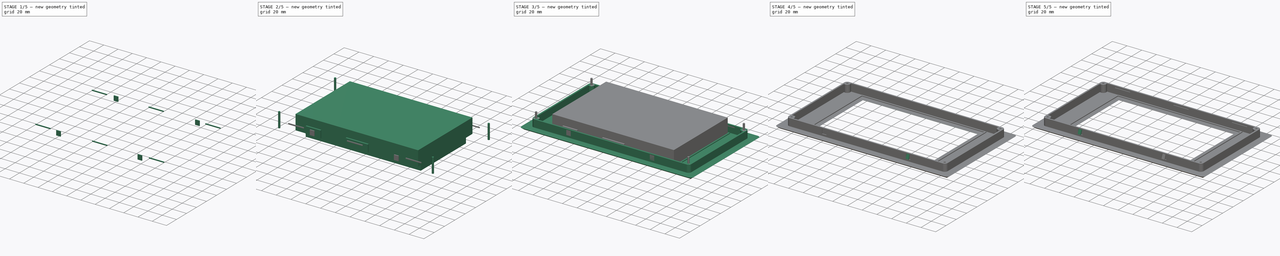
[diagram: build sequence overview — one tinted view per stage of 5, left to right]
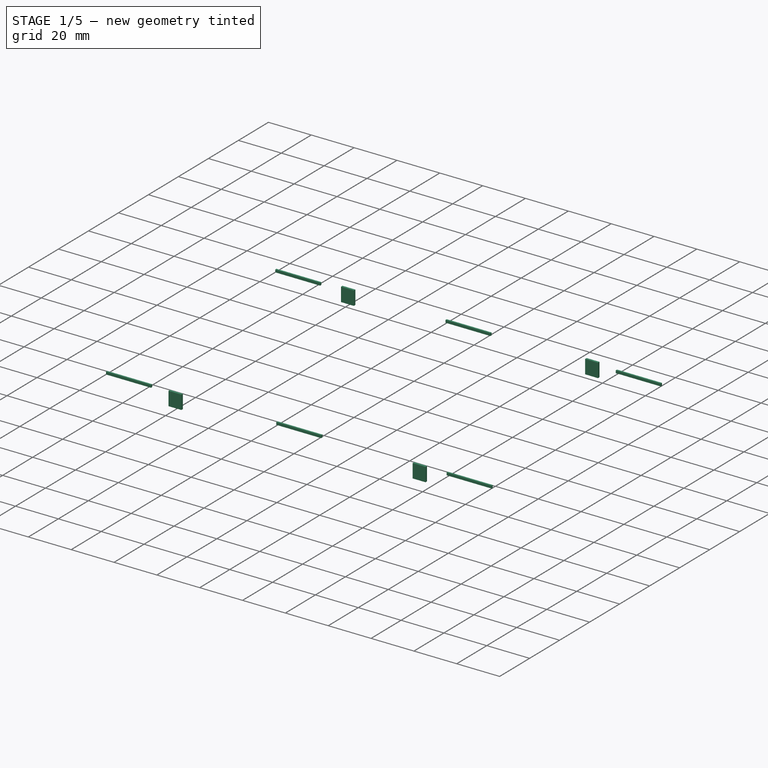
[diagram: stage 1 of 5 — iso view after this stage's code; geometry added in this stage tinted green]
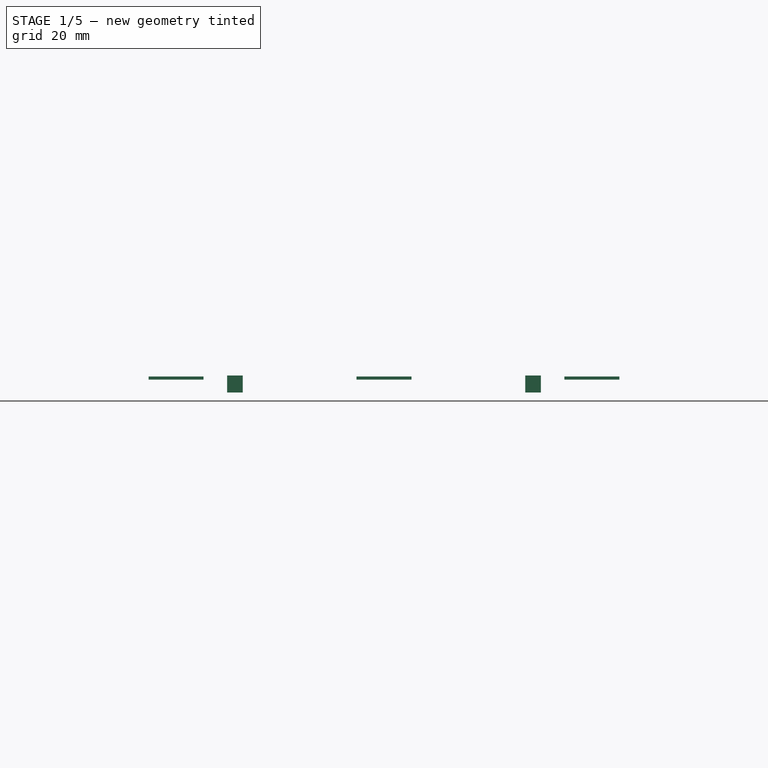
[diagram: stage 1 of 5 — front view after this stage's code; geometry added in this stage tinted green]
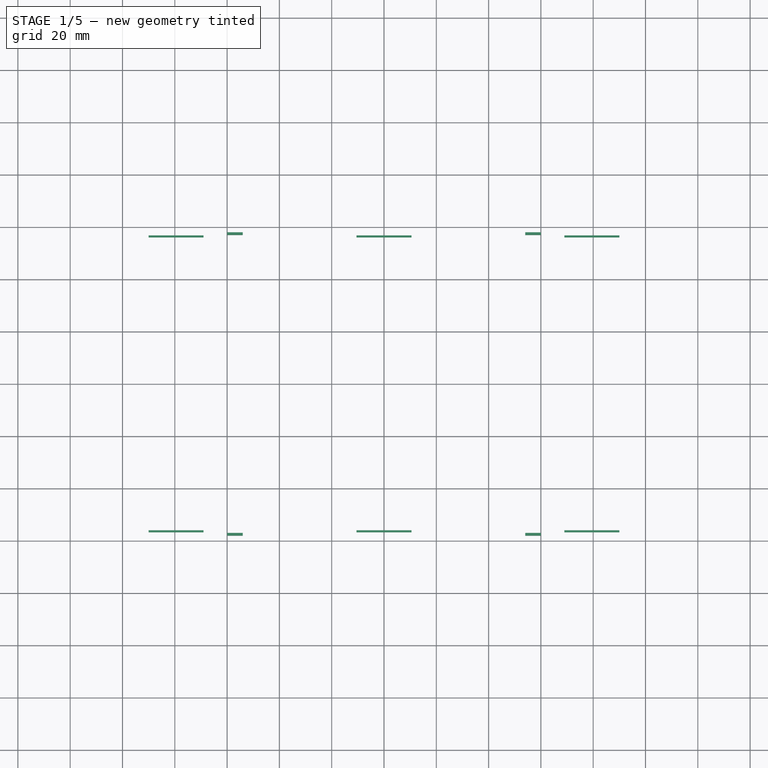
[diagram: stage 1 of 5 — top view after this stage's code; geometry added in this stage tinted green]
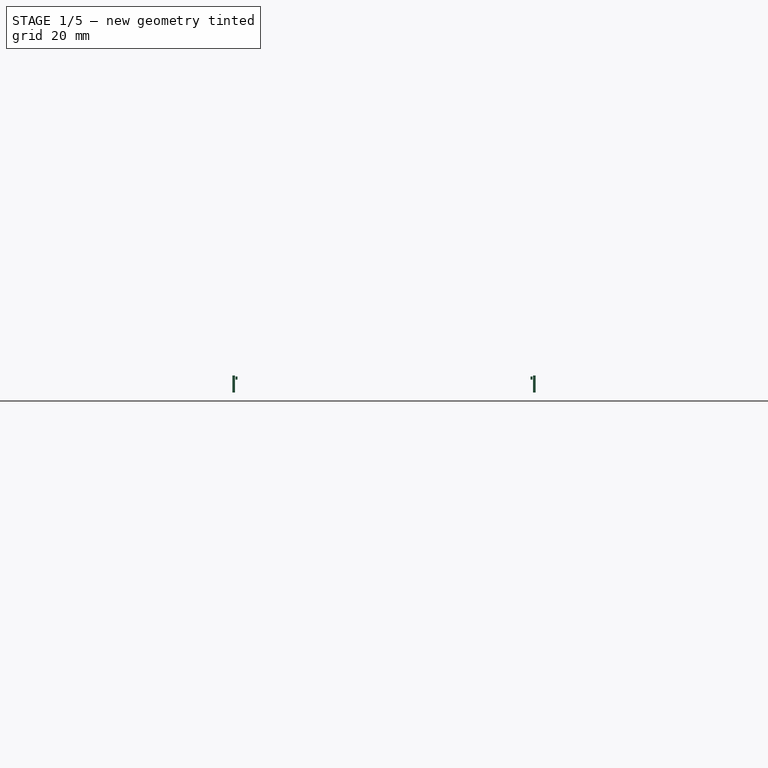
[diagram: stage 1 of 5 — right view after this stage's code; geometry added in this stage tinted green]
FCSTD DOCUMENT  (FreeCAD 0.16R6698 (Git))
Label: enclosure_front
License: All rights reserved
LicenseURL: http://en.wikipedia.org/wiki/All_rights_reserved
objects: Sketcher::SketchObject×9, PartDesign::Pad×8, Part::MultiFuse×5, Part::FeaturePython×3, Part::Cut×3, Part::Chamfer×2, Part::Mirroring×2, Part::Box×1, PartDesign::Pocket×1, Part::Cylinder×1
note: 44 computed .brp shape members not serialized (recipe doc carries the construction recipe); baked Part::Feature solids carry a one-line shape summary decoded from their .brp

FEATURE [Sketcher::SketchObject] Sketch007
  Placement = pos=(57,-57,0) rot=(0.57735,0.57735,0.57735;2.0944rad)
  sketch-geometry (4):
    g0: LineSegment StartX=-1 StartY=12 StartZ=0 EndX=0 EndY=12 EndZ=0
    g1: LineSegment StartX=0 StartY=12 StartZ=0 EndX=0 EndY=5.5 EndZ=0
    g2: LineSegment StartX=0 StartY=5.5 StartZ=0 EndX=-1 EndY=5.5 EndZ=0
    g3: LineSegment StartX=-1 StartY=5.5 StartZ=0 EndX=-1 EndY=12 EndZ=0
  constraints (12):
    c: Coincident(g0,g1)
    c: Coincident(g1,g2)
    c: Coincident(g2,g3)
    c: Coincident(g3,g0)
    c: Horizontal(g0)
    c: Horizontal(g2)
    c: Vertical(g1)
    c: Vertical(g3)
    c: DistanceX(g0,g0) = 1
    c: DistanceX(g0,g-1) = 1
    c: DistanceY(g-1,g1) = 5.5
    c: DistanceY(g0) = 12
FEATURE [PartDesign::Pad] Pad006  label="contact_pocket"
  Length = 6
  Length2 = 100
  Midplane = true
  Placement = pos=(57,-57,0) rot=(0.57735,0.57735,0.57735;2.0944rad)
  Sketch = -> Sketch007
  Type = 0
FEATURE [Part::FeaturePython] Array001  # Draft array (typed FeaturePython)
  Angle = 360
  ArrayType = 0
  Axis = (0,0,1)
  Base = -> Pad006
  Center = (0,0,0)
  Fuse = false
  IntervalAxis = (0,0,0)
  IntervalX = (-114,0,0)
  IntervalY = (0,1,0)
  IntervalZ = (0,0,0)
  NumberPolar = 1
  NumberX = 2
  NumberY = 1
  NumberZ = 1
FEATURE [Part::Mirroring] Part__Mirroring  label="Array001 (Mirror #1)"
  Base = (0,0,0)
  Normal = (0,1,0)
  Source = -> Array001
FEATURE [Part::MultiFuse] Fusion003  label="contact_pads"
  Shapes = -> [Part__Mirroring,Array001]
FEATURE [Sketcher::SketchObject] Sketch008
  Placement = pos=(0,0,10.4) rot=(0,0,1;0rad)
  sketch-geometry (26):
    g0: LineSegment StartX=-90 StartY=56.8 StartZ=0 EndX=-69 EndY=56.8 EndZ=0
    g1: LineSegment StartX=-69 StartY=56.8 StartZ=0 EndX=-69 EndY=56 EndZ=0
    g2: LineSegment StartX=-69 StartY=56 StartZ=0 EndX=-90 EndY=56 EndZ=0
    g3: LineSegment StartX=-90 StartY=56 StartZ=0 EndX=-90 EndY=56.8 EndZ=0
    g4: LineSegment StartX=-10.5 StartY=56.8 StartZ=0 EndX=10.5 EndY=56.8 EndZ=0
    g5: LineSegment StartX=10.5 StartY=56.8 StartZ=0 EndX=10.5 EndY=56 EndZ=0
    g6: LineSegment StartX=10.5 StartY=56 StartZ=0 EndX=-10.5 EndY=56 EndZ=0
    g7: LineSegment StartX=-10.5 StartY=56 StartZ=0 EndX=-10.5 EndY=56.8 EndZ=0
    g8: LineSegment StartX=69 StartY=56.8 StartZ=0 EndX=90 EndY=56.8 EndZ=0
    g9: LineSegment StartX=90 StartY=56.8 StartZ=0 EndX=90 EndY=56 EndZ=0
    g10: LineSegment StartX=90 StartY=56 StartZ=0 EndX=69 EndY=56 EndZ=0
    g11: LineSegment StartX=69 StartY=56 StartZ=0 EndX=69 EndY=56.8 EndZ=0
    g12: LineSegment [constr] StartX=90 StartY=56.8 StartZ=0 EndX=-90 EndY=56.8 EndZ=0
    g13: LineSegment StartX=-90 StartY=-56.8 StartZ=0 EndX=-69 EndY=-56.8 EndZ=0
    g14: LineSegment StartX=-69 StartY=-56.8 StartZ=0 EndX=-69 EndY=-56 EndZ=0
    g15: LineSegment StartX=-69 StartY=-56 StartZ=0 EndX=-90 EndY=-56 EndZ=0
    g16: LineSegment StartX=-90 StartY=-56 StartZ=0 EndX=-90 EndY=-56.8 EndZ=0
    g17: LineSegment StartX=-10.5 StartY=-56.8 StartZ=0 EndX=10.5 EndY=-56.8 EndZ=0
    g18: LineSegment StartX=10.5 StartY=-56.8 StartZ=0 EndX=10.5 EndY=-56 EndZ=0
    g19: LineSegment StartX=10.5 StartY=-56 StartZ=0 EndX=-10.5 EndY=-56 EndZ=0
    g20: LineSegment StartX=-10.5 StartY=-56 StartZ=0 EndX=-10.5 EndY=-56.8 EndZ=0
    g21: LineSegment StartX=69 StartY=-56.8 StartZ=0 EndX=90 EndY=-56.8 EndZ=0
    g22: LineSegment StartX=90 StartY=-56.8 StartZ=0 EndX=90 EndY=-56 EndZ=0
    g23: LineSegment StartX=90 StartY=-56 StartZ=0 EndX=69 EndY=-56 EndZ=0
    g24: LineSegment StartX=69 StartY=-56 StartZ=0 EndX=69 EndY=-56.8 EndZ=0
    g25: LineSegment [constr] StartX=90 StartY=-56.8 StartZ=0 EndX=-90 EndY=-56.8 EndZ=0
  constraints (76):
    c: Coincident(g0,g1)
    c: Coincident(g1,g2)
    c: Coincident(g2,g3)
    c: Coincident(g3,g0)
    c: Horizontal(g0)
    c: Horizontal(g2)
    c: Vertical(g1)
    c: Vertical(g3)
    c: Coincident(g4,g5)
    c: Coincident(g5,g6)
    c: Coincident(g6,g7)
    c: Coincident(g7,g4)
    c: Horizontal(g4)
    c: Horizontal(g6)
    c: Vertical(g5)
    c: Vertical(g7)
    c: Coincident(g8,g9)
    c: Coincident(g9,g10)
    c: Coincident(g10,g11)
    c: Coincident(g11,g8)
    c: Horizontal(g8)
    c: Horizontal(g10)
    c: Vertical(g9)
    c: Vertical(g11)
    c: Equal(g1,g7)
    c: Equal(g7,g11)
    c: Equal(g8,g4)
    c: Equal(g4,g0)
    c: Symmetric(g0,g8,g-2)
    c: Symmetric(g4,g4,g-2)
    c: Horizontal(g12)
    c: Symmetric(g12,g12,g-2)
    c: DistanceX(g12,g12) = 180
    c: Coincident(g8,g12)
    c: PointOnObject(g4,g12)
    c: DistanceY(g1,g1) = 0.8
    c: DistanceX(g2,g2) = 21
    c: Coincident(g13,g14)
    c: Coincident(g14,g15)
    c: Coincident(g15,g16)
    c: Coincident(g16,g13)
    c: Horizontal(g13)
    c: Horizontal(g15)
    c: Vertical(g14)
    c: Vertical(g16)
    c: Coincident(g17,g18)
    c: Coincident(g18,g19)
    c: Coincident(g19,g20)
    c: Coincident(g20,g17)
    c: Horizontal(g17)
    c: Horizontal(g19)
    c: Vertical(g18)
    c: Vertical(g20)
    c: Coincident(g21,g22)
    c: Coincident(g22,g23)
    c: Coincident(g23,g24)
    c: Coincident(g24,g21)
    c: Horizontal(g21)
    c: Horizontal(g23)
    c: Vertical(g22)
    c: Vertical(g24)
    c: Equal(g14,g20)
    c: Equal(g20,g24)
    c: Equal(g21,g17)
    c: Equal(g17,g13)
    c: Horizontal(g25)
    c: Coincident(g21,g25)
    c: PointOnObject(g17,g25)
    c: DistanceX(g25,g25) = 180
    c: Equal(g23,g10)
    c: Equal(g18,g5)
    c: Symmetric(g23,g14,g-2)
    c: Symmetric(g21,g25,g-2)
    c: Symmetric(g13,g0,g-1)
    c: Symmetric(g18,g19,g-2)
    c: DistanceY(g-1,g2) = 56
FEATURE [PartDesign::Pad] Pad007
  Length = 1.2
  Length2 = 100
  Placement = pos=(0,0,10.4) rot=(0,0,1;0rad)
  Sketch = -> Sketch008
  Type = 0
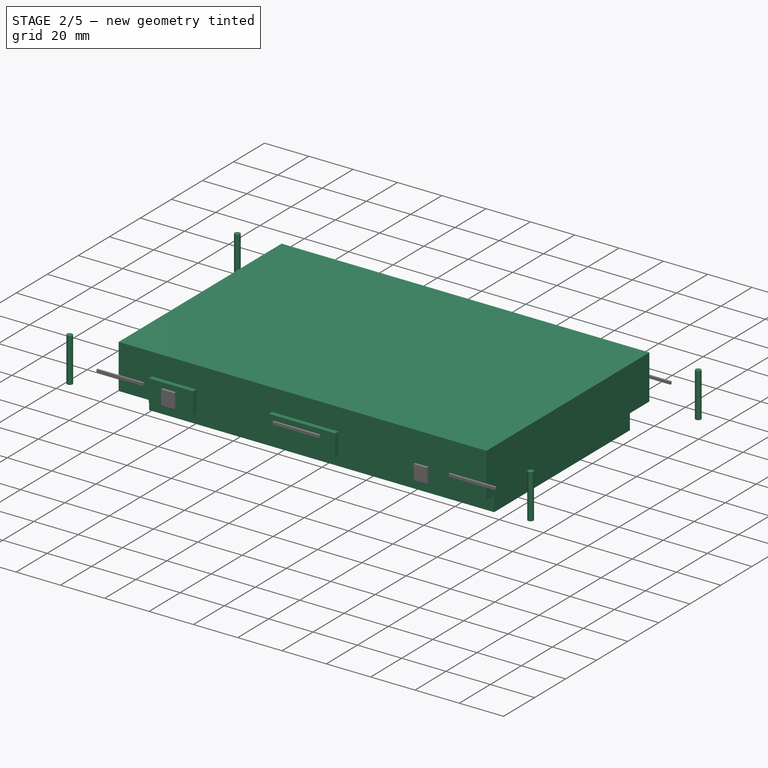
[diagram: stage 2 of 5 — iso view after this stage's code; geometry added in this stage tinted green]
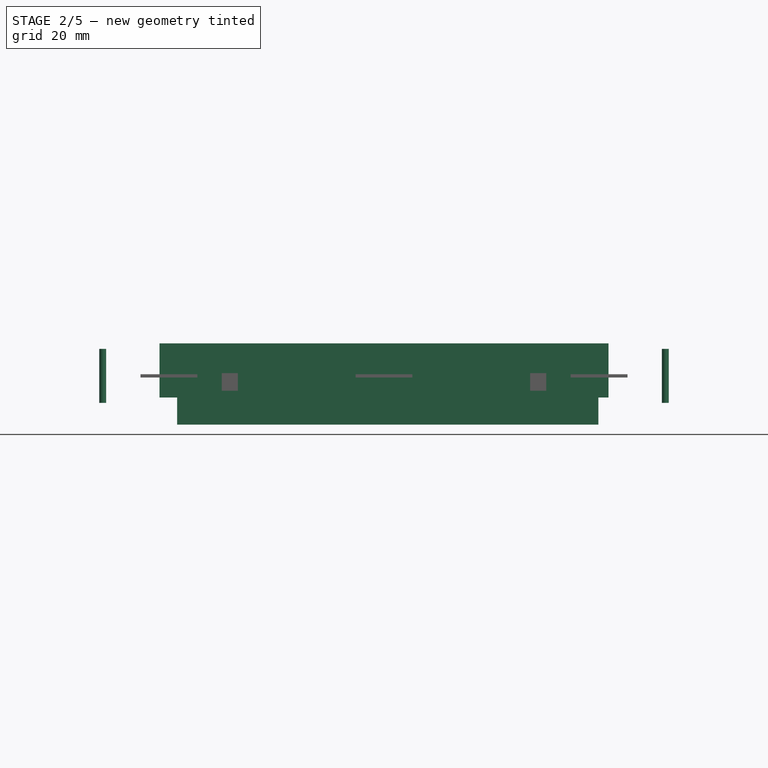
[diagram: stage 2 of 5 — front view after this stage's code; geometry added in this stage tinted green]
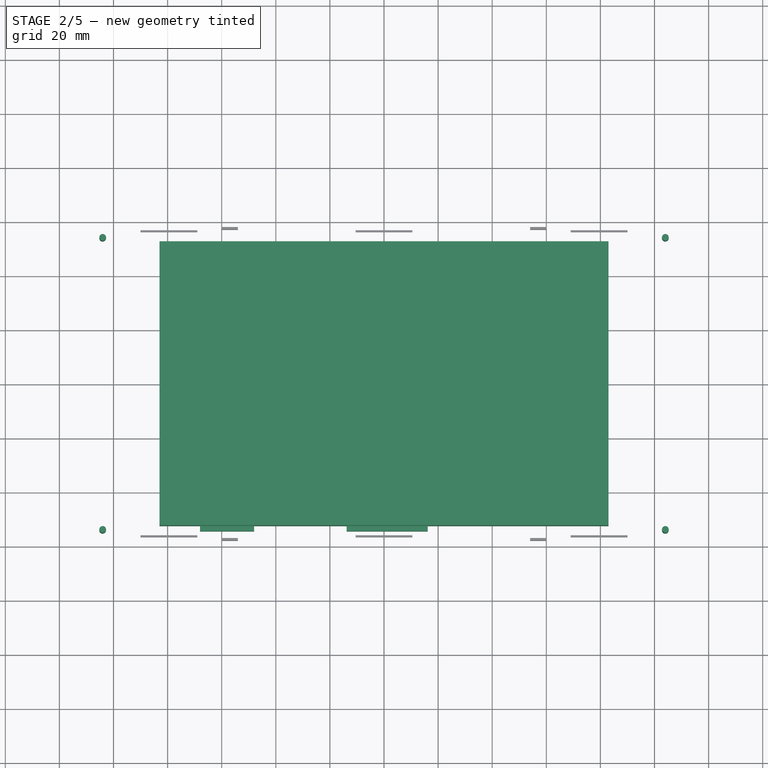
[diagram: stage 2 of 5 — top view after this stage's code; geometry added in this stage tinted green]
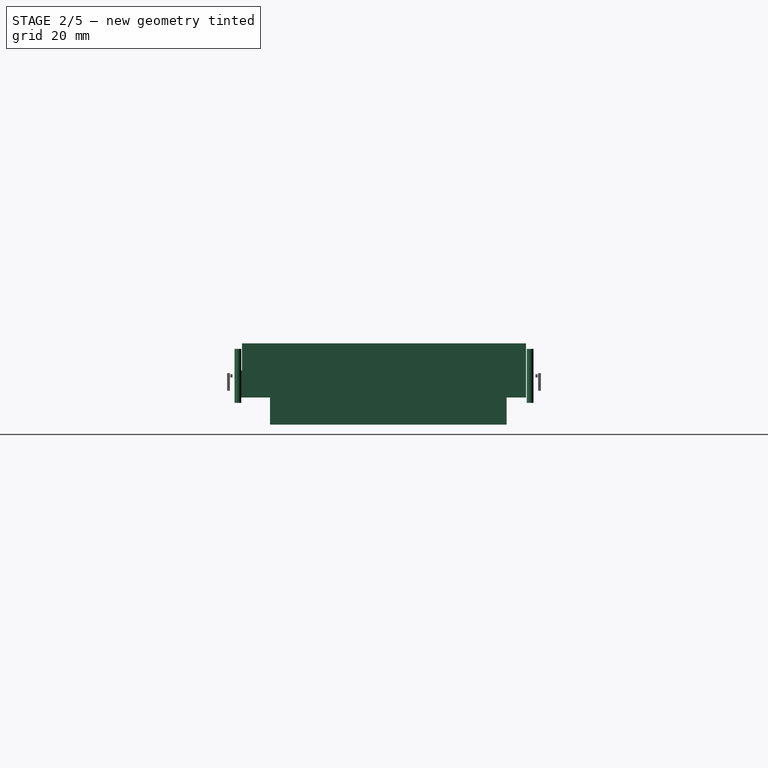
[diagram: stage 2 of 5 — right view after this stage's code; geometry added in this stage tinted green]
FEATURE [Part::Box] Box  label="lcd_outer_dim"
  Height = 20
  Length = 166
  Placement = pos=(-83,-52.5,3) rot=(0,0,1;0rad)
  Width = 105
FEATURE [Sketcher::SketchObject] Sketch001  label="lcd_active_area"
  Placement = pos=(-83,-52.5,3) rot=(1,0,0;3.14159rad)
  Support = -> Box [Face5]
  sketch-geometry (6):
    g0: LineSegment StartX=6.53 StartY=-10.35 StartZ=0 EndX=162.23 EndY=-10.35 EndZ=0
    g1: LineSegment StartX=162.23 StartY=-10.35 StartZ=0 EndX=162.23 EndY=-97.85 EndZ=0
    g2: LineSegment StartX=162.23 StartY=-97.85 StartZ=0 EndX=6.53 EndY=-97.85 EndZ=0
    g3: LineSegment StartX=6.53 StartY=-97.85 StartZ=0 EndX=6.53 EndY=-10.35 EndZ=0
    g4: LineSegment [constr] StartX=84.38 StartY=129.271 StartZ=0 EndX=84.38 EndY=-25.2178 EndZ=0
    g5: LineSegment [constr] StartX=-65.6672 StartY=-54.1 StartZ=0 EndX=192.573 EndY=-54.1 EndZ=0
  constraints (16):
    c: Coincident(g0,g1)
    c: Coincident(g1,g2)
    c: Coincident(g2,g3)
    c: Coincident(g3,g0)
    c: Horizontal(g0)
    c: Horizontal(g2)
    c: Vertical(g1)
    c: Vertical(g3)
    c: DistanceY(g3,g3) = 87.5
    c: DistanceX(g0,g0) = 155.7
    c: Vertical(g4)
    c: Horizontal(g5)
    c: DistanceY(g-1,g5) = -54.1
    c: DistanceX(g-1,g4) = 84.38
    c: Symmetric(g0,g1,g5)
    c: Symmetric(g1,g2,g4)
FEATURE [PartDesign::Pad] Pad001  label="lcd_visible_are_pad"
  Length = 10
  Length2 = 100
  Placement = pos=(-83,-52.5,3) rot=(0,0,1;0rad)
  Sketch = -> Sketch001
  Type = 0
FEATURE [Sketcher::SketchObject] Sketch002
  Placement = pos=(-83,-52.5,3) rot=(1,0,0;1.5708rad)
  Support = -> Pad001 [Face2]
  sketch-geometry (8):
    g0: LineSegment StartX=69.18 StartY=10 StartZ=0 EndX=99.18 EndY=10 EndZ=0
    g1: LineSegment StartX=99.18 StartY=10 StartZ=0 EndX=99.18 EndY=0 EndZ=0
    g2: LineSegment StartX=99.18 StartY=0 StartZ=0 EndX=69.18 EndY=0 EndZ=0
    g3: LineSegment StartX=69.18 StartY=0 StartZ=0 EndX=69.18 EndY=10 EndZ=0
    g4: LineSegment StartX=15 StartY=10 StartZ=0 EndX=35 EndY=10 EndZ=0
    g5: LineSegment StartX=35 StartY=10 StartZ=0 EndX=35 EndY=0 EndZ=0
    g6: LineSegment StartX=35 StartY=0 StartZ=0 EndX=15 EndY=0 EndZ=0
    g7: LineSegment StartX=15 StartY=0 StartZ=0 EndX=15 EndY=10 EndZ=0
  constraints (24):
    c: Coincident(g0,g1)
    c: Coincident(g1,g2)
    c: Coincident(g2,g3)
    c: Coincident(g3,g0)
    c: Horizontal(g0)
    c: Horizontal(g2)
    c: Vertical(g1)
    c: Vertical(g3)
    c: PointOnObject(g1,g-1)
    c: DistanceY(g1,g1) = 10
    c: DistanceX(g0,g0) = 30
    c: DistanceX(g-1,g0) = 69.18
    c: Coincident(g4,g5)
    c: Coincident(g5,g6)
    c: Coincident(g6,g7)
    c: Coincident(g7,g4)
    c: Horizontal(g4)
    c: Horizontal(g6)
    c: Vertical(g5)
    c: Vertical(g7)
    c: PointOnObject(g5,g-1)
    c: DistanceY(g5,g5) = 10
    c: DistanceX(g4,g4) = 20
    c: DistanceX(g-1,g6) = 15
FEATURE [PartDesign::Pad] Pad002  label="lcd_connector_pad"
  Length = 2
  Length2 = 100
  Placement = pos=(-83,-52.5,3) rot=(0,0,1;0rad)
  Sketch = -> Sketch002
  Type = 0
FEATURE [Part::Cylinder] Cylinder  label="screw"
  Angle = 360
  Height = 20
  Placement = pos=(104,54,1) rot=(0,0,1;0rad)
  Radius = 1.25
FEATURE [Part::FeaturePython] Array  label="screws"  # Draft array (typed FeaturePython)
  Angle = 360
  ArrayType = 0
  Axis = (0,0,1)
  Base = -> Cylinder
  Center = (0,0,0)
  Fuse = false
  IntervalAxis = (0,0,0)
  IntervalX = (-208,0,0)
  IntervalY = (0,-108,0)
  IntervalZ = (0,0,0)
  NumberPolar = 1
  NumberX = 2
  NumberY = 2
  NumberZ = 1
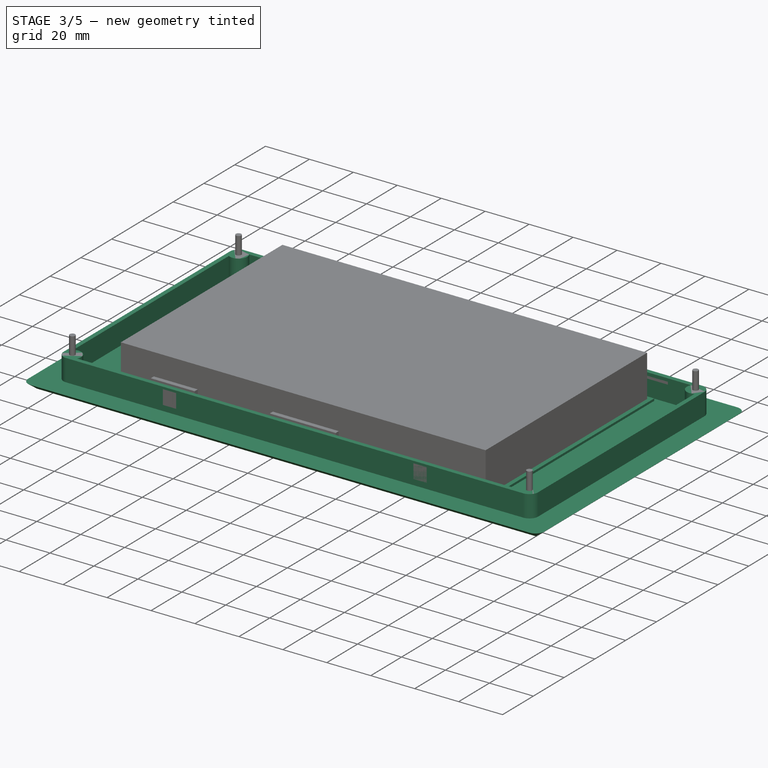
[diagram: stage 3 of 5 — iso view after this stage's code; geometry added in this stage tinted green]
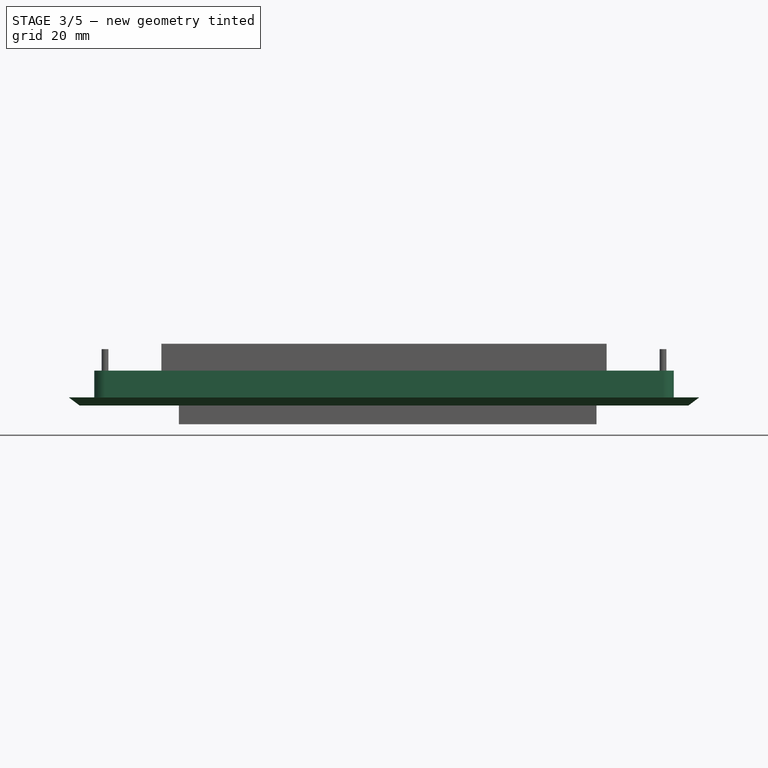
[diagram: stage 3 of 5 — front view after this stage's code; geometry added in this stage tinted green]
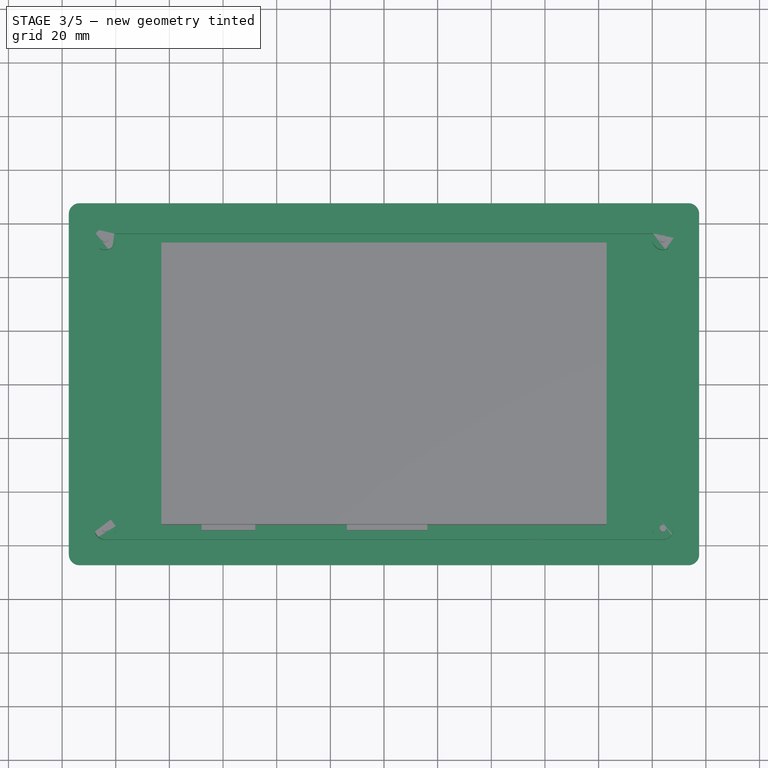
[diagram: stage 3 of 5 — top view after this stage's code; geometry added in this stage tinted green]
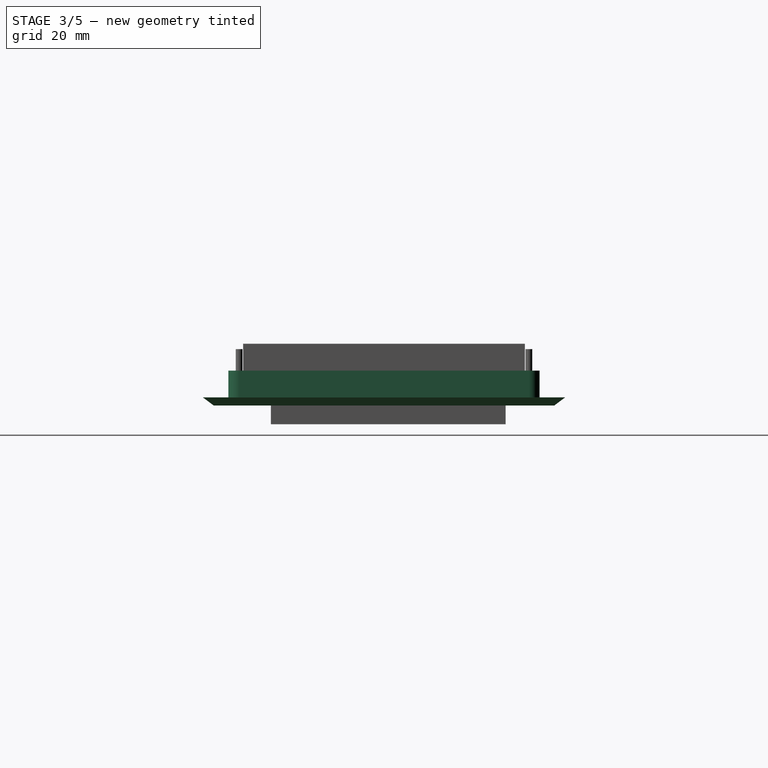
[diagram: stage 3 of 5 — right view after this stage's code; geometry added in this stage tinted green]
FEATURE [Sketcher::SketchObject] Sketch
  sketch-geometry (8):
    g0: LineSegment StartX=-113.5 StartY=67.5 StartZ=0 EndX=113.5 EndY=67.5 EndZ=0
    g1: LineSegment StartX=117.5 StartY=63.5 StartZ=0 EndX=117.5 EndY=-63.5 EndZ=0
    g2: LineSegment StartX=113.5 StartY=-67.5 StartZ=0 EndX=-113.5 EndY=-67.5 EndZ=0
    g3: LineSegment StartX=-117.5 StartY=-63.5 StartZ=0 EndX=-117.5 EndY=63.5 EndZ=0
    g4: ArcOfCircle CenterX=113.5 CenterY=63.5 CenterZ=0 NormalX=0 NormalY=0 NormalZ=1 Radius=4 StartAngle=0 EndAngle=1.5708
    g5: ArcOfCircle CenterX=-113.5 CenterY=63.5 CenterZ=0 NormalX=0 NormalY=0 NormalZ=1 Radius=4 StartAngle=1.5708 EndAngle=3.14159
    g6: ArcOfCircle CenterX=-113.5 CenterY=-63.5 CenterZ=0 NormalX=0 NormalY=0 NormalZ=1 Radius=4 StartAngle=3.14159 EndAngle=4.71239
    g7: ArcOfCircle CenterX=113.5 CenterY=-63.5 CenterZ=0 NormalX=0 NormalY=0 NormalZ=1 Radius=4 StartAngle=4.71239 EndAngle=6.28319
  constraints (19):
    c: Horizontal(g0)
    c: Horizontal(g2)
    c: Vertical(g1)
    c: Vertical(g3)
    c: Tangent(g1,g4) = 1.5708
    c: Tangent(g0,g4) = 1.5708
    c: Tangent(g0,g5) = 1.5708
    c: Tangent(g3,g5) = 1.5708
    c: Tangent(g3,g6) = 1.5708
    c: Tangent(g2,g6) = 1.5708
    c: Tangent(g2,g7) = 1.5708
    c: Tangent(g1,g7) = 1.5708
    c: DistanceX(g3,g1) = 235
    c: DistanceY(g2,g0) = 135
    c: Equal(g5,g6)
    c: Equal(g6,g7)
    c: Symmetric(g7,g4,g-1)
    c: Symmetric(g1,g3,g-2)
    c: Radius(g5) = 4
FEATURE [PartDesign::Pad] Pad
  Length = 3
  Length2 = 100
  Sketch = -> Sketch
  Type = 0
FEATURE [Part::Chamfer] Chamfer
  Base = -> Pad
  Edges = 8 edges: [Edge3 r1=2.99 r2=4,Edge6 r1=2.99 r2=4,Edge9 r1=2.99 r2=4,Edge12 r1=2.99 r2=4,Edge15 r1=2.99 r2=4,Edge18 r1=2.99 r2=4,Edge21 r1=2.99 r2=4,Edge23 r1=2.99 r2=4]
FEATURE [Sketcher::SketchObject] Sketch003
  Placement = pos=(0,0,3) rot=(0,0,1;0rad)
  sketch-geometry (8):
    g0: LineSegment StartX=-104 StartY=58 StartZ=0 EndX=104 EndY=58 EndZ=0
    g1: LineSegment StartX=108 StartY=54 StartZ=0 EndX=108 EndY=-54 EndZ=0
    g2: LineSegment StartX=104 StartY=-58 StartZ=0 EndX=-104 EndY=-58 EndZ=0
    g3: LineSegment StartX=-108 StartY=-54 StartZ=0 EndX=-108 EndY=54 EndZ=0
    g4: ArcOfCircle CenterX=104 CenterY=-54 CenterZ=0 NormalX=0 NormalY=0 NormalZ=1 Radius=4 StartAngle=4.71239 EndAngle=6.28319
    g5: ArcOfCircle CenterX=-104 CenterY=-54 CenterZ=0 NormalX=0 NormalY=0 NormalZ=1 Radius=4 StartAngle=3.14159 EndAngle=4.71239
    g6: ArcOfCircle CenterX=-104 CenterY=54 CenterZ=0 NormalX=0 NormalY=0 NormalZ=1 Radius=4 StartAngle=1.5708 EndAngle=3.14159
    g7: ArcOfCircle CenterX=104 CenterY=54 CenterZ=0 NormalX=0 NormalY=0 NormalZ=1 Radius=4 StartAngle=0 EndAngle=1.5708
  constraints (18):
    c: Horizontal(g2)
    c: Vertical(g1)
    c: Tangent(g1,g4) = 1.5708
    c: Tangent(g2,g4) = 1.5708
    c: Tangent(g2,g5) = 1.5708
    c: Tangent(g3,g5) = 1.5708
    c: Tangent(g3,g6) = 1.5708
    c: Tangent(g0,g6) = 1.5708
    c: Tangent(g0,g7) = 1.5708
    c: Tangent(g1,g7) = 1.5708
    c: Symmetric(g1,g3,g-2)
    c: Symmetric(g0,g2,g-1)
    c: Equal(g4,g7)
    c: Equal(g7,g6)
    c: Equal(g6,g5)
    c: Radius(g6) = 4
    c: DistanceY(g2,g0) = 116
    c: DistanceX(g3,g1) = 216
FEATURE [PartDesign::Pad] Pad003  label="seal_ring_pad"
  Length = 10
  Length2 = 100
  Placement = pos=(0,0,3) rot=(0,0,1;0rad)
  Sketch = -> Sketch003
  Type = 0
FEATURE [Sketcher::SketchObject] Sketch004
  Placement = pos=(0,0,13) rot=(0,0,1;0rad)
  Support = -> Pad003 [Face10]
  sketch-geometry (8):
    g0: LineSegment StartX=-106 StartY=-50.5359 StartZ=0 EndX=-106 EndY=50.5359 EndZ=0
    g1: ArcOfCircle CenterX=-104 CenterY=54 CenterZ=0 NormalX=0 NormalY=0 NormalZ=1 Radius=4 StartAngle=4.18879 EndAngle=6.80678
    g2: LineSegment StartX=-100.536 StartY=56 StartZ=0 EndX=100.536 EndY=56 EndZ=0
    g3: ArcOfCircle CenterX=104 CenterY=54 CenterZ=0 NormalX=0 NormalY=0 NormalZ=1 Radius=4 StartAngle=2.61799 EndAngle=5.23599
    g4: LineSegment StartX=106 StartY=50.5359 StartZ=0 EndX=106 EndY=-50.5359 EndZ=0
    g5: ArcOfCircle CenterX=104 CenterY=-54 CenterZ=0 NormalX=0 NormalY=0 NormalZ=1 Radius=4 StartAngle=1.0472 EndAngle=3.66519
    g6: LineSegment StartX=100.536 StartY=-56 StartZ=0 EndX=-100.536 EndY=-56 EndZ=0
    g7: ArcOfCircle CenterX=-104 CenterY=-54 CenterZ=0 NormalX=0 NormalY=0 NormalZ=1 Radius=4 StartAngle=5.75959 EndAngle=8.37758
  constraints (24):
    c: Vertical(g0)
    c: Coincident(g1,g2)
    c: Horizontal(g2)
    c: Coincident(g3,g4)
    c: Vertical(g4)
    c: Horizontal(g6)
    c: Coincident(g7,g0)
    c: Coincident(g7,g6)
    c: Coincident(g4,g5)
    c: Coincident(g0,g1)
    c: Symmetric(g1,g3,g-2)
    c: Symmetric(g3,g5,g-1)
    c: Symmetric(g7,g1,g-1)
    c: Equal(g7,g1)
    c: Equal(g5,g3)
    c: DistanceX(g1,g3) = 208
    c: DistanceY(g7,g1) = 108
    c: Radius(g7) = 4
    c: Symmetric(g3,g5,g-1)
    c: Symmetric(g4,g0,g-2)
    c: DistanceX(g0,g4) = 212
    c: DistanceY(g5,g3) = 112
    c: Coincident(g2,g3)
    c: Coincident(g6,g5)
FEATURE [PartDesign::Pocket] Pocket  label="seal_ring_pocket"
  Length = 5
  Placement = pos=(0,0,3) rot=(0,0,1;0rad)
  Sketch = -> Sketch004
  Type = 1
FEATURE [Sketcher::SketchObject] Sketch005
  Placement = pos=(0,0,3) rot=(0,0,1;0rad)
  sketch-geometry (4):
    g0: LineSegment StartX=-84.5 StartY=54.4 StartZ=0 EndX=84.9 EndY=54.4 EndZ=0
    g1: LineSegment StartX=84.9 StartY=54.4 StartZ=0 EndX=84.9 EndY=-55.1 EndZ=0
    g2: LineSegment StartX=84.9 StartY=-55.1 StartZ=0 EndX=-84.5 EndY=-55.1 EndZ=0
    g3: LineSegment StartX=-84.5 StartY=-55.1 StartZ=0 EndX=-84.5 EndY=54.4 EndZ=0
  constraints (12):
    c: Coincident(g0,g1)
    c: Coincident(g1,g2)
    c: Coincident(g2,g3)
    c: Coincident(g3,g0)
    c: Horizontal(g0)
    c: Horizontal(g2)
    c: Vertical(g1)
    c: Vertical(g3)
    c: DistanceX(g2,g2) = 169.4
    c: DistanceY(g3,g3) = 109.5
    c: DistanceX(g-1,g0) = 84.9
    c: DistanceY(g-1,g0) = 54.4
FEATURE [PartDesign::Pad] Pad004  label="lcd_placement_pad"
  Length = 1
  Length2 = 100
  Placement = pos=(0,0,3) rot=(0,0,1;0rad)
  Sketch = -> Sketch005
  Type = 0
FEATURE [Part::MultiFuse] Fusion001  label="screw_&_lcd"
  Shapes = -> [Array,Pad002]
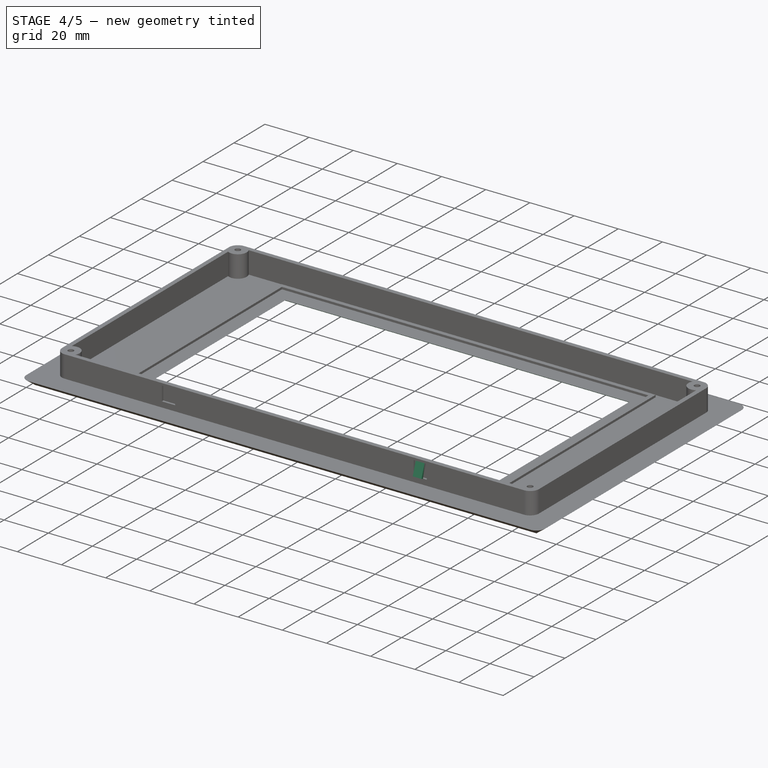
[diagram: stage 4 of 5 — iso view after this stage's code; geometry added in this stage tinted green]
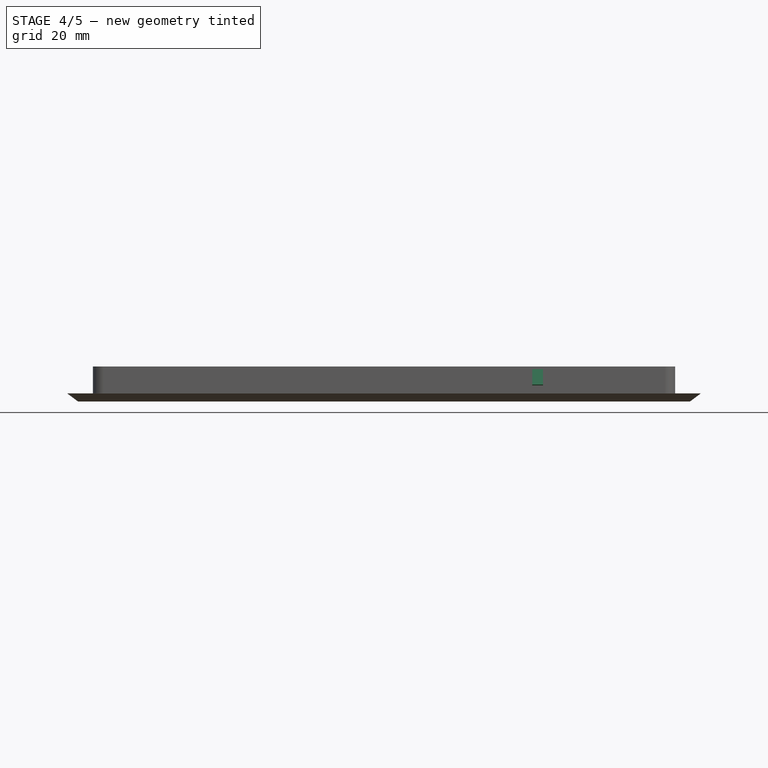
[diagram: stage 4 of 5 — front view after this stage's code; geometry added in this stage tinted green]
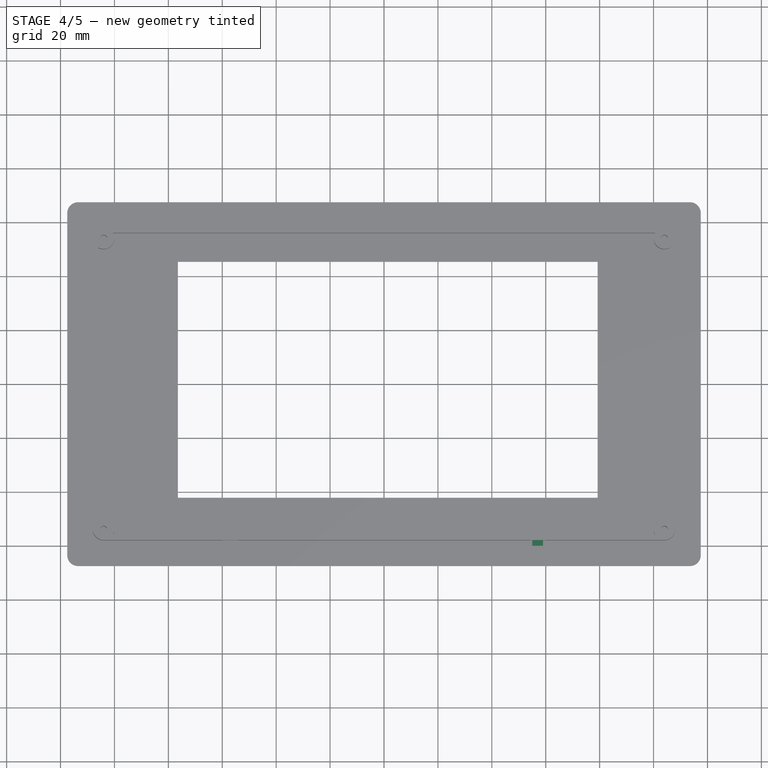
[diagram: stage 4 of 5 — top view after this stage's code; geometry added in this stage tinted green]
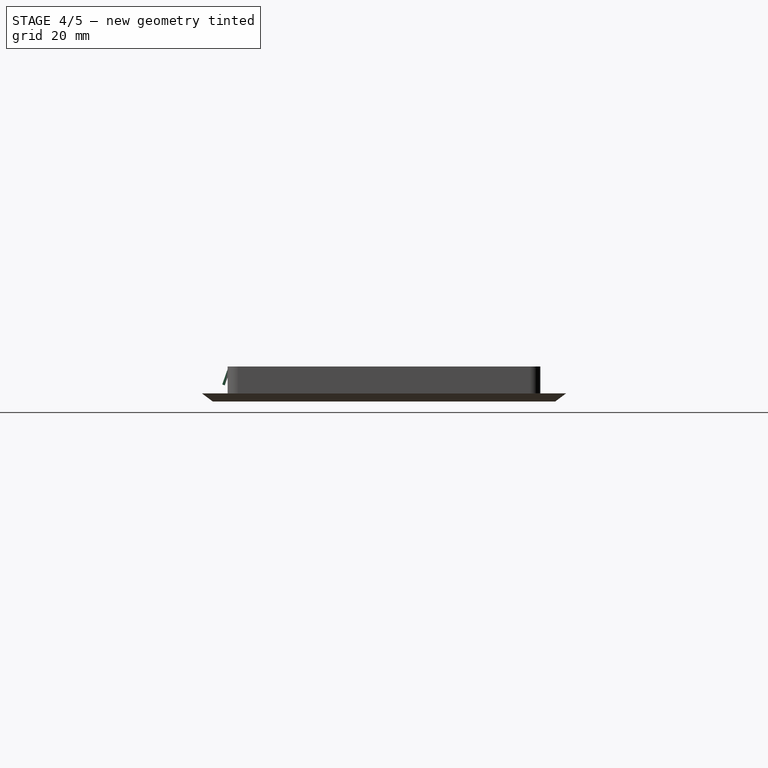
[diagram: stage 4 of 5 — right view after this stage's code; geometry added in this stage tinted green]
FEATURE [Part::MultiFuse] Fusion  label="main"
  Shapes = -> [Pad004,Pocket,Chamfer]
FEATURE [Part::Cut] Cut
  Base = -> Fusion
  Tool = -> Fusion001
FEATURE [Part::Chamfer] Chamfer001
  Base = -> Cut
  Edges = 4 edges: [Edge80 r1=2.99 r2=5,Edge82 r1=2.99 r2=5,Edge85 r1=2.99 r2=5,Edge86 r1=2.99 r2=5]
FEATURE [Sketcher::SketchObject] Sketch006
  Placement = pos=(57,-57,0) rot=(0.57735,0.57735,0.57735;2.0944rad)
  sketch-geometry (4):
    g0: LineSegment StartX=-2.057 StartY=6 StartZ=0 EndX=-3 EndY=6.33279 EndZ=0
    g1: LineSegment StartX=-3 StartY=6.33279 StartZ=0 EndX=-1 EndY=12 EndZ=0
    g2: LineSegment StartX=-2.057 StartY=6 StartZ=0 EndX=0.060445 EndY=12 EndZ=0
    g3: LineSegment StartX=0.060445 StartY=12 StartZ=0 EndX=-1 EndY=12 EndZ=0
  constraints (12):
    c: Coincident(g0,g1)
    c: Coincident(g0,g2)
    c: Coincident(g3,g1)
    c: Parallel(g2,g1)
    c: Distance(g0) = 1
    c: DistanceX(g1,g-1) = 1
    c: Perpendicular(g2,g0)
    c: DistanceX(g0,g-1) = 3
    c: Coincident(g3,g2)
    c: DistanceY(g0,g1) = 6
    c: DistanceY(g0) = 6
    c: Horizontal(g3)
FEATURE [PartDesign::Pad] Pad005  label="contact"
  Length = 4
  Length2 = 100
  Midplane = true
  Placement = pos=(57,-57,0) rot=(0.57735,0.57735,0.57735;2.0944rad)
  Sketch = -> Sketch006
  Type = 0
FEATURE [Part::Cut] Cut001
  Base = -> Chamfer001
  Tool = -> Fusion003
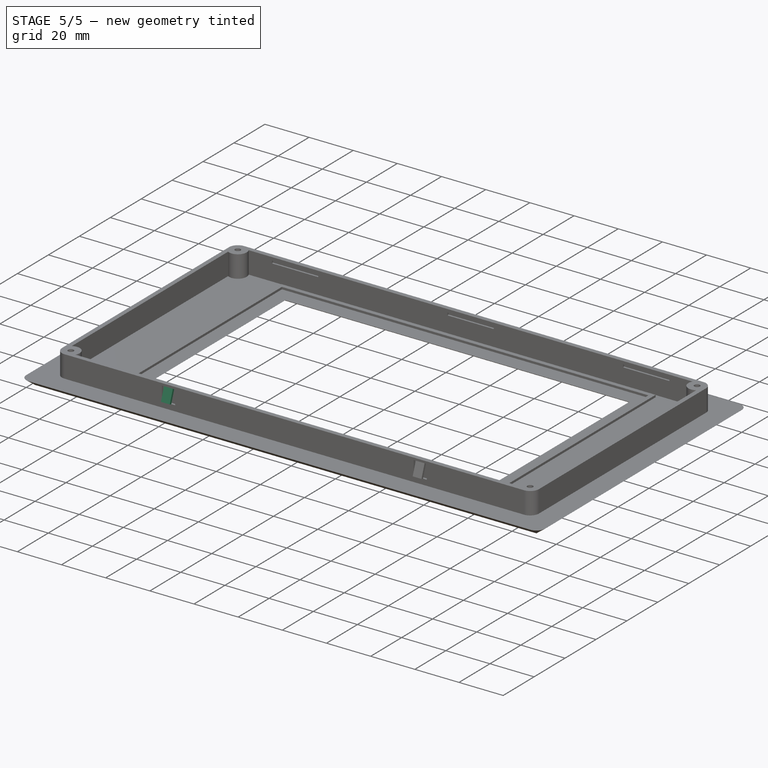
[diagram: stage 5 of 5 — iso view after this stage's code; geometry added in this stage tinted green]
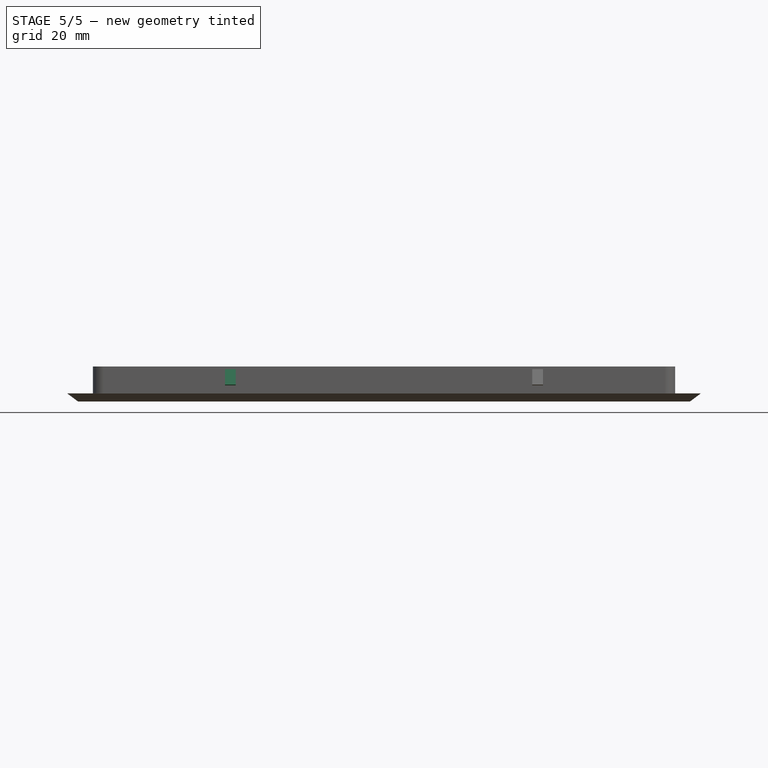
[diagram: stage 5 of 5 — front view after this stage's code; geometry added in this stage tinted green]
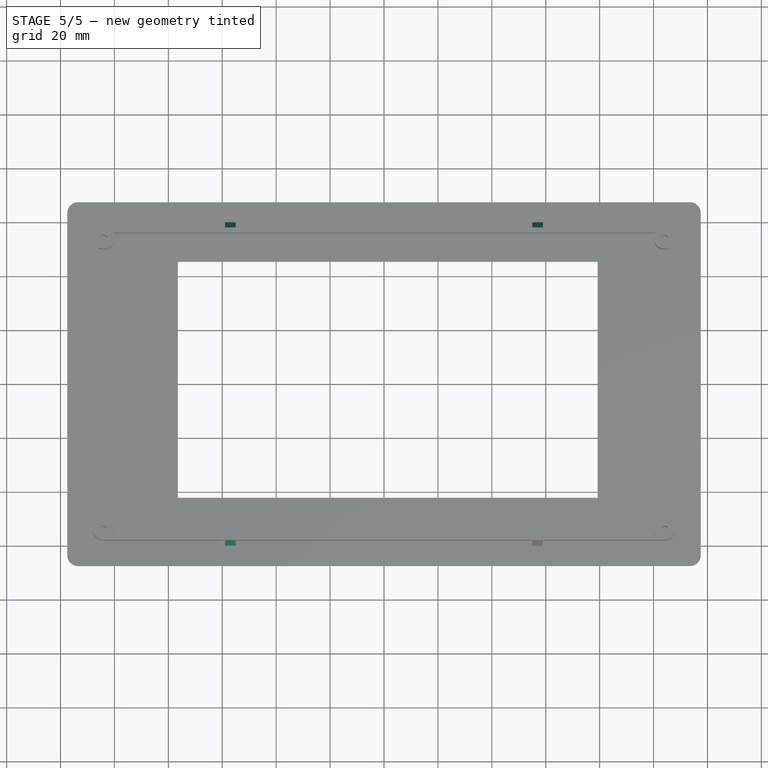
[diagram: stage 5 of 5 — top view after this stage's code; geometry added in this stage tinted green]
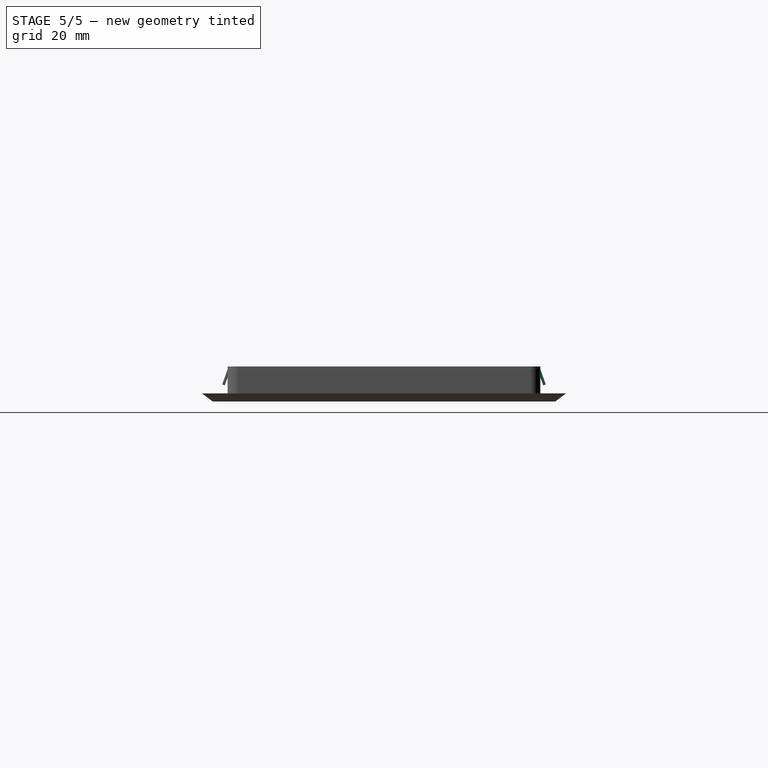
[diagram: stage 5 of 5 — right view after this stage's code; geometry added in this stage tinted green]
FEATURE [Part::FeaturePython] Array002  # Draft array (typed FeaturePython)
  Angle = 360
  ArrayType = 0
  Axis = (0,0,1)
  Base = -> Pad005
  Center = (0,0,0)
  Fuse = false
  IntervalAxis = (0,0,0)
  IntervalX = (-114,0,0)
  IntervalY = (0,1,0)
  IntervalZ = (0,0,0)
  NumberPolar = 1
  NumberX = 2
  NumberY = 1
  NumberZ = 1
FEATURE [Part::Mirroring] Part__Mirroring001  label="Array002 (Mirror #2)"
  Base = (0,0,0)
  Normal = (0,1,0)
  Source = -> Array002
FEATURE [Part::MultiFuse] Fusion002  label="contacts"
  Shapes = -> [Array002,Part__Mirroring001]
FEATURE [Part::MultiFuse] Fusion004  label="display_with_contacts"
  Shapes = -> [Fusion002,Cut001]
FEATURE [Part::Cut] Cut002
  Base = -> Fusion004
  Tool = -> Pad007
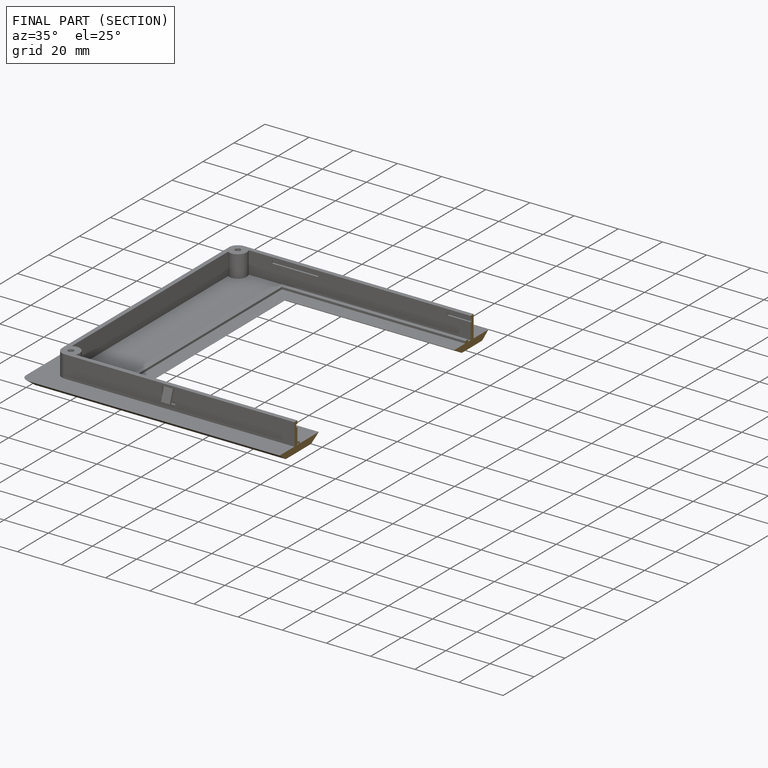
[diagram: finished part — half-section view (interior)]
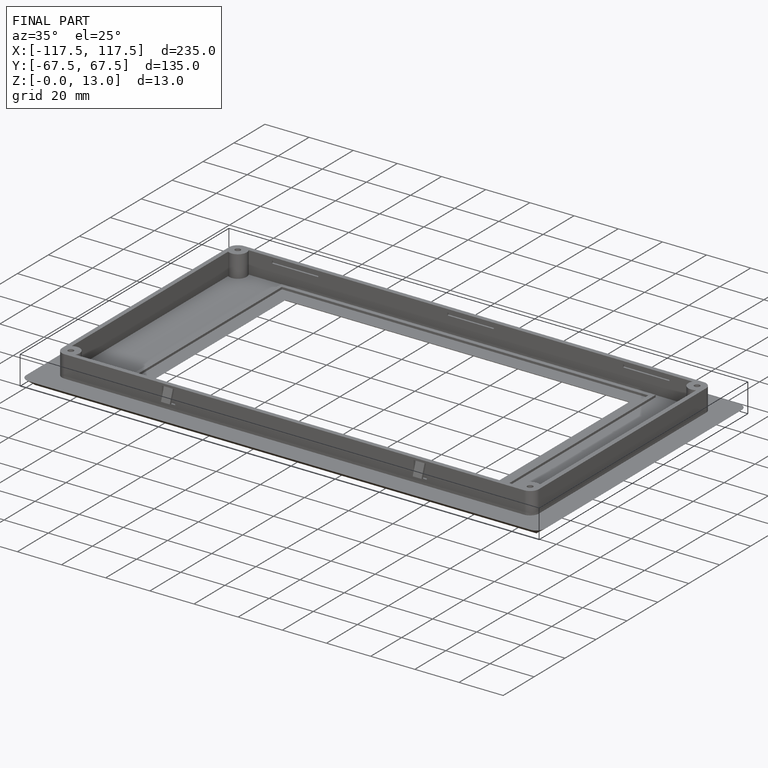
[diagram: finished part — iso view with bounding-box wireframe]
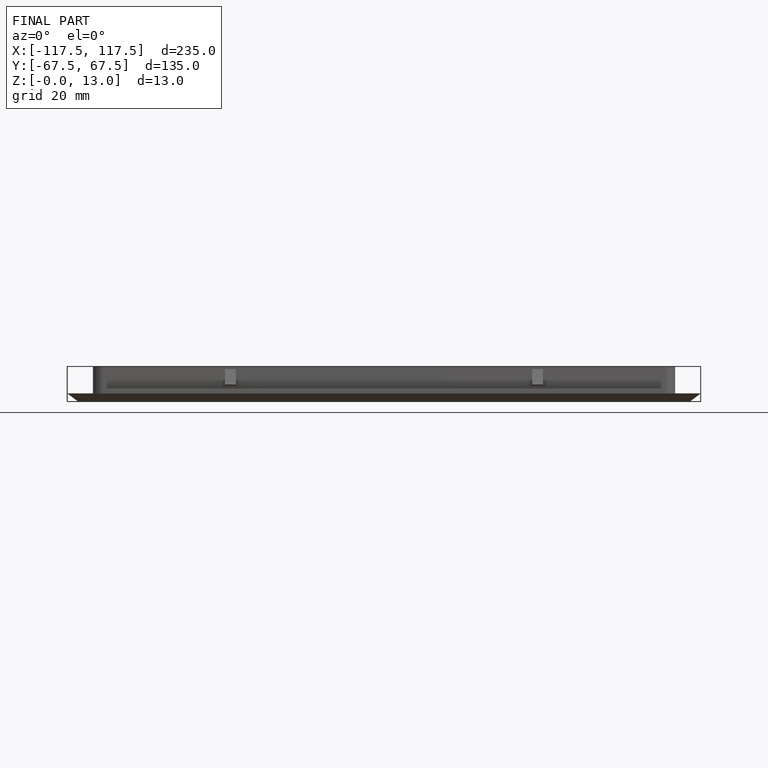
[diagram: finished part — front view with bounding-box wireframe]
